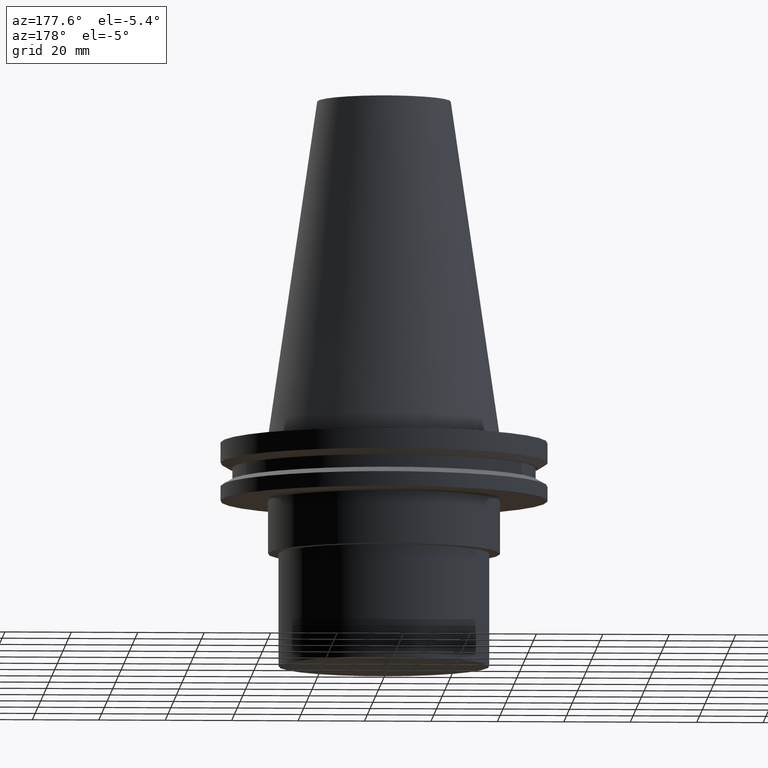
[diagram: clean part render]
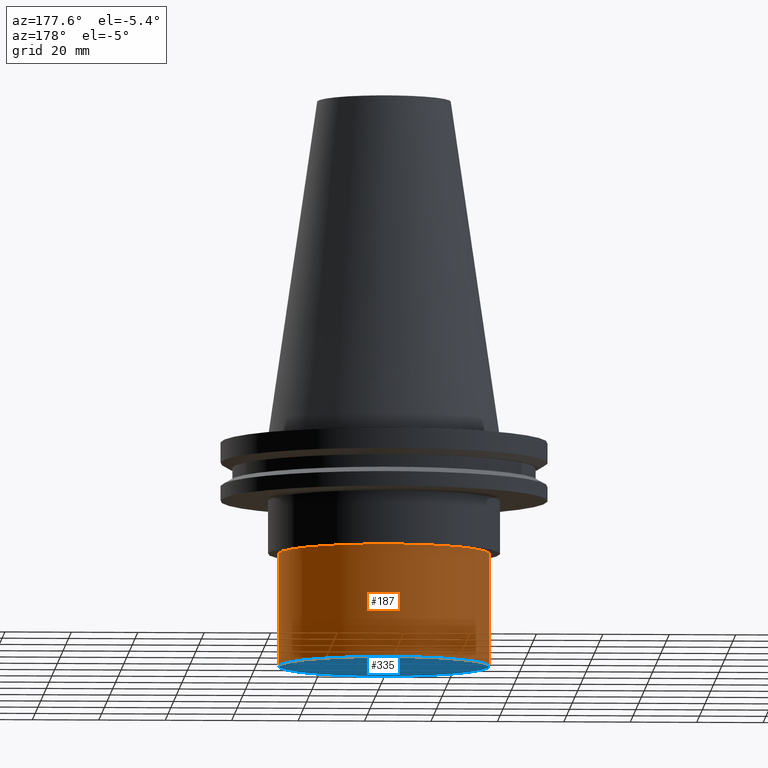
[diagram: same view with the hole feature highlighted: cylindrical wall and planar end face, labeled with their STEP entity ids]
A machine part, auxiliary view. The highlighted faces form one hole feature of diameter 63.5 mm: the cylindrical wall (entity #187, orange) and its adjacent planar end face (entity #335, blue) — they share a circular edge in the B-rep.
Wall:
#23 = CIRCLE ( 'NONE', #165, 31.75000000000000000 ) ;
#45 = EDGE_CURVE ( 'NONE', #111, #111, #23, .T. ) ;
#51 = CARTESIAN_POINT ( 'NONE',  ( 0.000000000000000000, 0.000000000000000000, -35.00000000000000000 ) ) ;
#71 = EDGE_LOOP ( 'NONE', ( #230 ) ) ;
#77 = CARTESIAN_POINT ( 'NONE',  ( 0.000000000000000000, 0.000000000000000000, -69.00000000000000000 ) ) ;
#78 = AXIS2_PLACEMENT_3D ( 'NONE', #77, #135, #257 ) ;
#80 = DIRECTION ( 'NONE',  ( 1.000000000000000000, 0.000000000000000000, 0.000000000000000000 ) ) ;
#89 = CARTESIAN_POINT ( 'NONE',  ( 31.75000000000000000, 0.000000000000000000, -69.00000000000000000 ) ) ;
#111 = VERTEX_POINT ( 'NONE', #237 ) ;
#135 = DIRECTION ( 'NONE',  ( -0.000000000000000000, -0.000000000000000000, 1.000000000000000000 ) ) ;
#143 = DIRECTION ( 'NONE',  ( -0.000000000000000000, -0.000000000000000000, 1.000000000000000000 ) ) ;
#150 = DIRECTION ( 'NONE',  ( -0.000000000000000000, -0.000000000000000000, 1.000000000000000000 ) ) ;
#165 = AXIS2_PLACEMENT_3D ( 'NONE', #51, #143, #80 ) ;
#187 = ADVANCED_FACE ( 'NONE', ( #367, #331 ), #337, .T. ) ;
#212 = CIRCLE ( 'NONE', #78, 31.75000000000000000 ) ;
#218 = EDGE_CURVE ( 'NONE', #274, #274, #212, .T. ) ;
#222 = EDGE_LOOP ( 'NONE', ( #376 ) ) ;
#230 = ORIENTED_EDGE ( 'NONE', *, *, #218, .T. ) ;
#237 = CARTESIAN_POINT ( 'NONE',  ( 31.75000000000000000, 0.000000000000000000, -35.00000000000000000 ) ) ;
#257 = DIRECTION ( 'NONE',  ( 1.000000000000000000, 0.000000000000000000, 0.000000000000000000 ) ) ;
#274 = VERTEX_POINT ( 'NONE', #89 ) ;
#331 = FACE_OUTER_BOUND ( 'NONE', #71, .T. ) ;
#337 = CYLINDRICAL_SURFACE ( 'NONE', #344, 31.75000000000000000 ) ;
#344 = AXIS2_PLACEMENT_3D ( 'NONE', #393, #150, #394 ) ;
#367 = FACE_OUTER_BOUND ( 'NONE', #222, .T. ) ;
#376 = ORIENTED_EDGE ( 'NONE', *, *, #45, .F. ) ;
#393 = CARTESIAN_POINT ( 'NONE',  ( 0.000000000000000000, 0.000000000000000000, 0.000000000000000000 ) ) ;
#394 = DIRECTION ( 'NONE',  ( 1.000000000000000000, 0.000000000000000000, 0.000000000000000000 ) ) ;
End face:
#39 = ORIENTED_EDGE ( 'NONE', *, *, #218, .F. ) ;
#44 = PLANE ( 'NONE',  #91 ) ;
#75 = EDGE_LOOP ( 'NONE', ( #39 ) ) ;
#77 = CARTESIAN_POINT ( 'NONE',  ( 0.000000000000000000, 0.000000000000000000, -69.00000000000000000 ) ) ;
#78 = AXIS2_PLACEMENT_3D ( 'NONE', #77, #135, #257 ) ;
#89 = CARTESIAN_POINT ( 'NONE',  ( 31.75000000000000000, 0.000000000000000000, -69.00000000000000000 ) ) ;
#91 = AXIS2_PLACEMENT_3D ( 'NONE', #167, #292, #244 ) ;
#135 = DIRECTION ( 'NONE',  ( -0.000000000000000000, -0.000000000000000000, 1.000000000000000000 ) ) ;
#167 = CARTESIAN_POINT ( 'NONE',  ( 0.000000000000000000, 31.75000000000000000, -69.00000000000000000 ) ) ;
#212 = CIRCLE ( 'NONE', #78, 31.75000000000000000 ) ;
#218 = EDGE_CURVE ( 'NONE', #274, #274, #212, .T. ) ;
#244 = DIRECTION ( 'NONE',  ( 1.000000000000000000, 0.000000000000000000, 0.000000000000000000 ) ) ;
#257 = DIRECTION ( 'NONE',  ( 1.000000000000000000, 0.000000000000000000, 0.000000000000000000 ) ) ;
#274 = VERTEX_POINT ( 'NONE', #89 ) ;
#292 = DIRECTION ( 'NONE',  ( 0.000000000000000000, -0.000000000000000000, 1.000000000000000000 ) ) ;
#318 = FACE_OUTER_BOUND ( 'NONE', #75, .T. ) ;
#335 = ADVANCED_FACE ( 'NONE', ( #318 ), #44, .F. ) ;